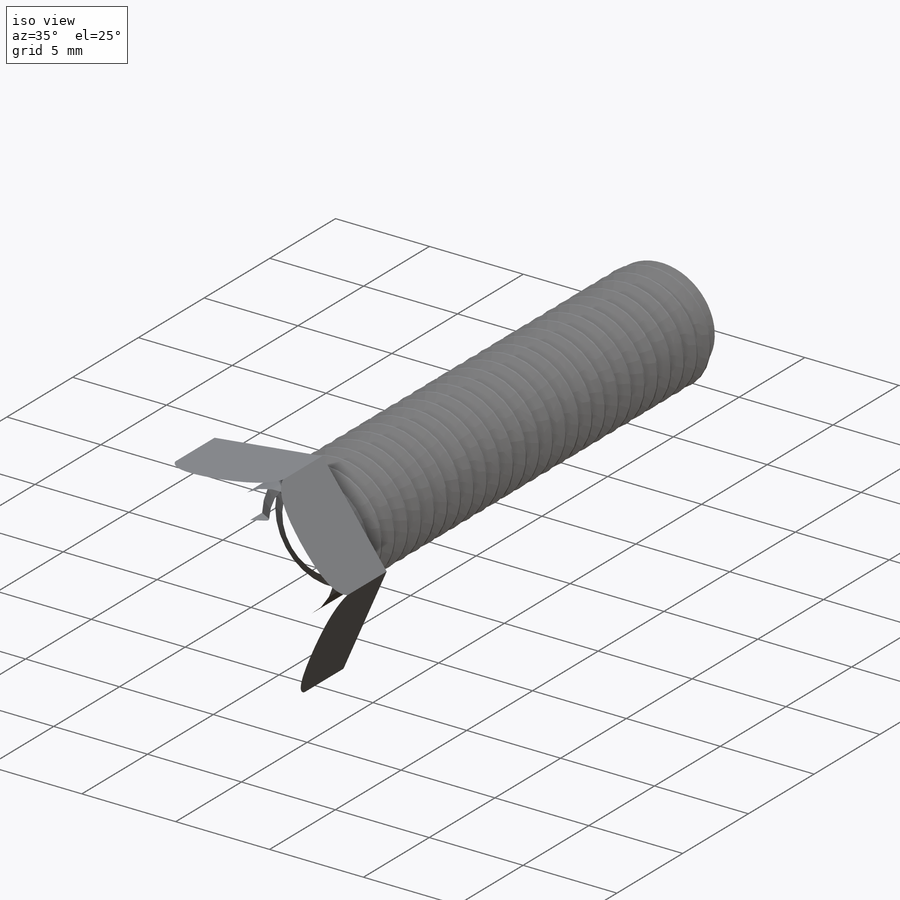
[diagram: iso view]
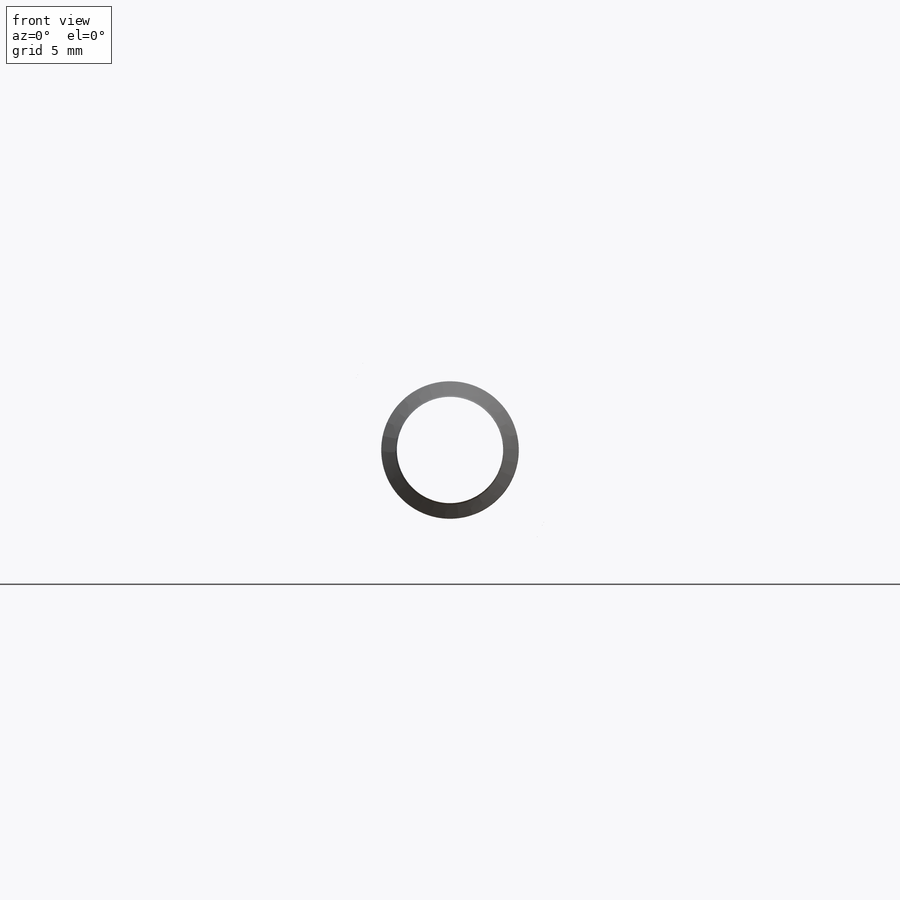
[diagram: front view]
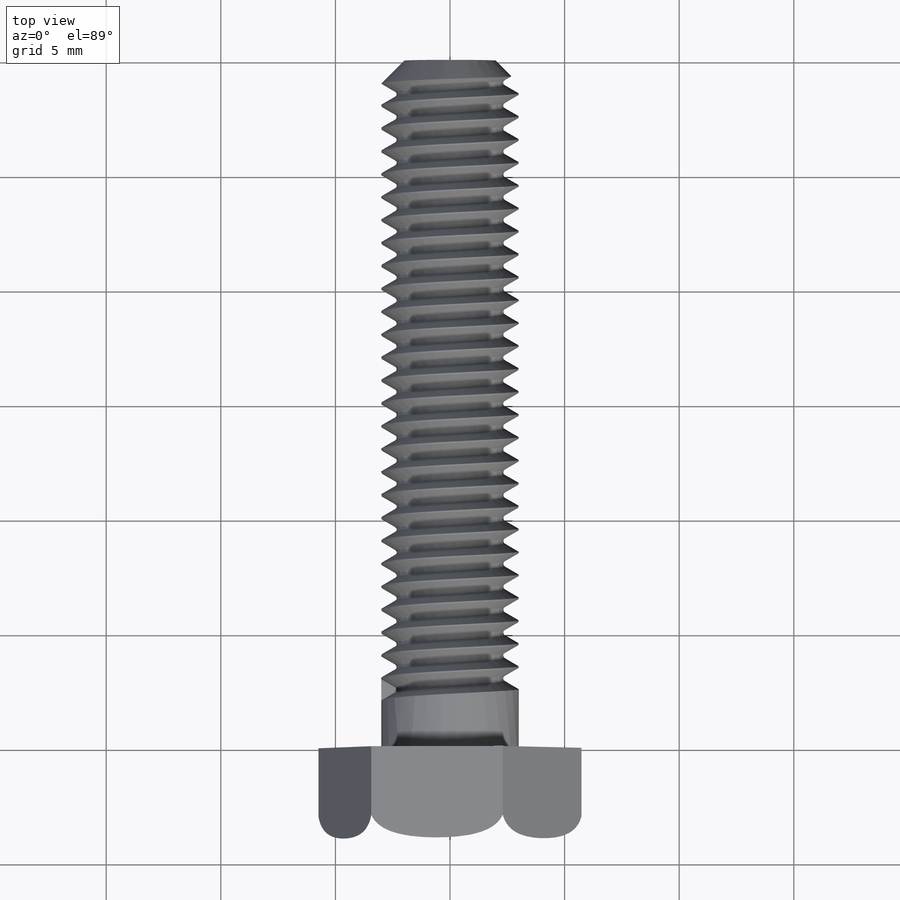
[diagram: top view]
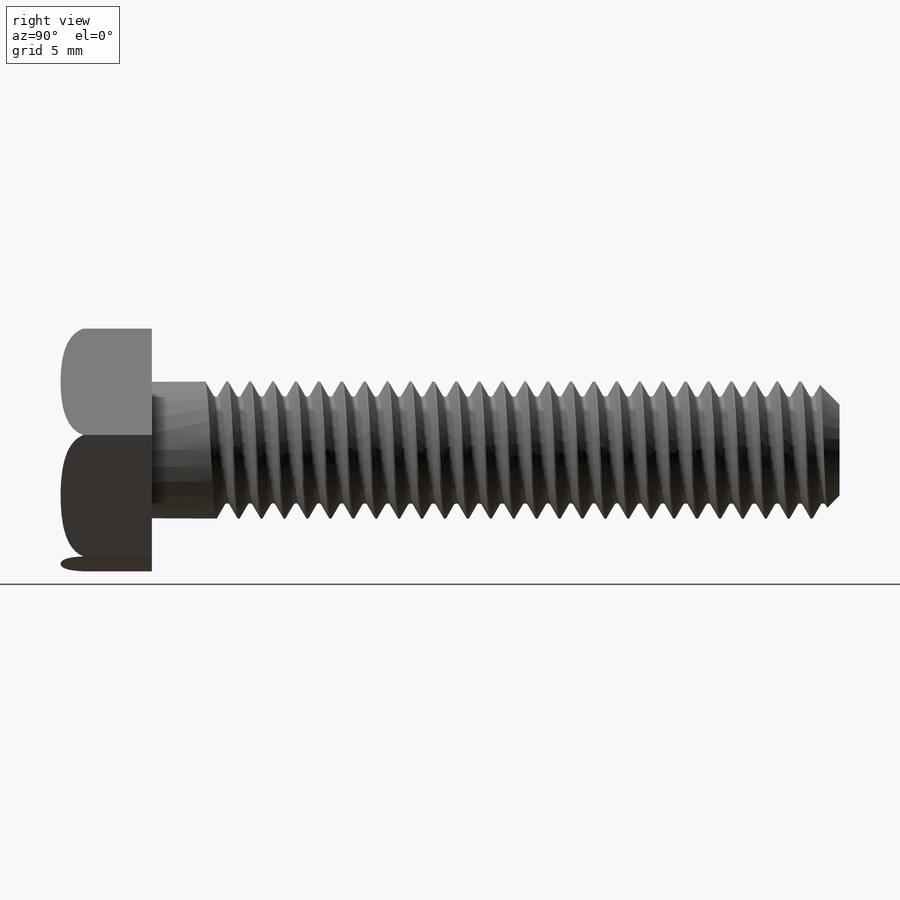
[diagram: right view]
SOLIDWORKS PART (.sldprt)
format: sldprt  version: not decoded by parser v0  size: 1,060,864 bytes
history: native  units: mm
features: sketch x6, plane x4, extrude x2, material x1, helix x1, chamfer x1, sweep x1, cut_revolve x1 (+9 scaffold rows collapsed)
feature tree (26):
  scaffold x9  (default folders/planes/origin — collapsed)
  material  "Material <sin especificar>"
  plane  "Ön Düzlem"
  plane  "Üst Düzlem"
  plane  "Sağ Düzlem"
  sketch  "Sketch1"  dims[D1=~28.611228mm]
  extrude  "Boss-Extrude1"  Depth=30mm
  sketch  "Sketch2"
  helix  "Helix/Spiral1"  Pitch=27mm
  chamfer  "Chamfer1"  Distance=1mm Angle=45deg
  sketch  "Sketch3"  dims[c1.D1=0.93mm c2.D1=60.0deg c2.D2=0.93mm]
  sweep  "Cut-Sweep1"
  sketch  "Sketch4"  dims[D1=~4.799184mm]
  extrude  "Boss-Extrude2"  Depth=4mm
  sketch  "Sketch5"
  plane  "Plane1"
  sketch  "Sketch7"  dims[D1=1.0mm]
  cut_revolve  "Cut-Revolve1"  Angle=360deg
decode coverage: 9 of 12 modeling features carry decoded parameters
note: ~ marks probable driven/reference dimensions
note: suppression state not decoded; provenance and decode notes live in map.json
